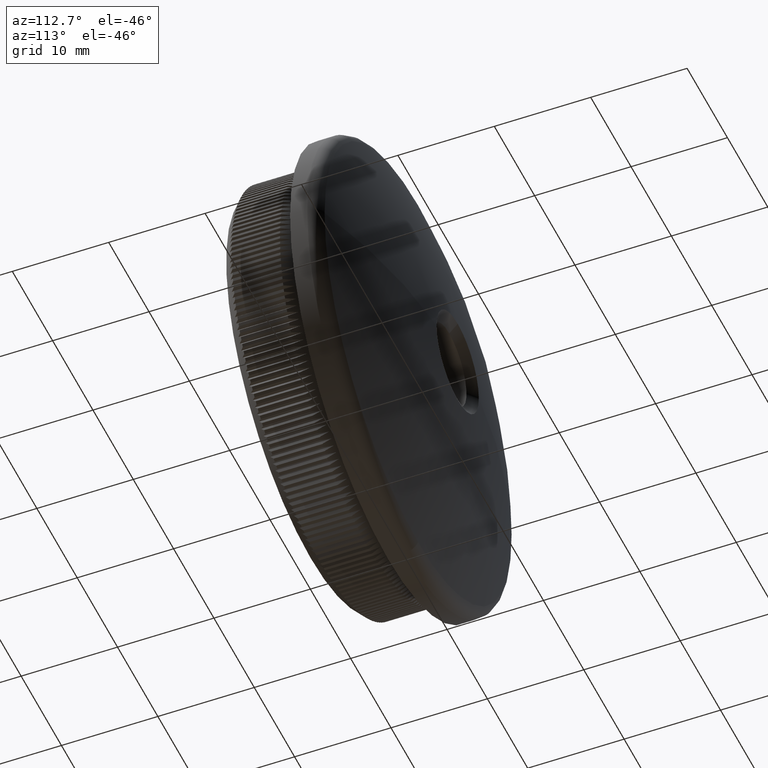
[diagram: clean part render]
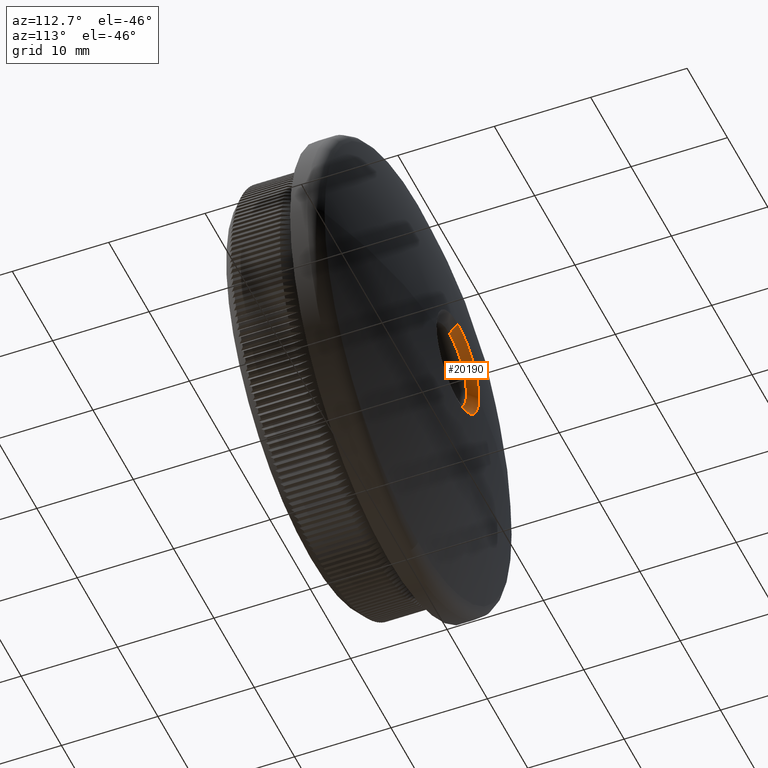
[diagram: same view with one face highlighted and labeled with its STEP entity id]
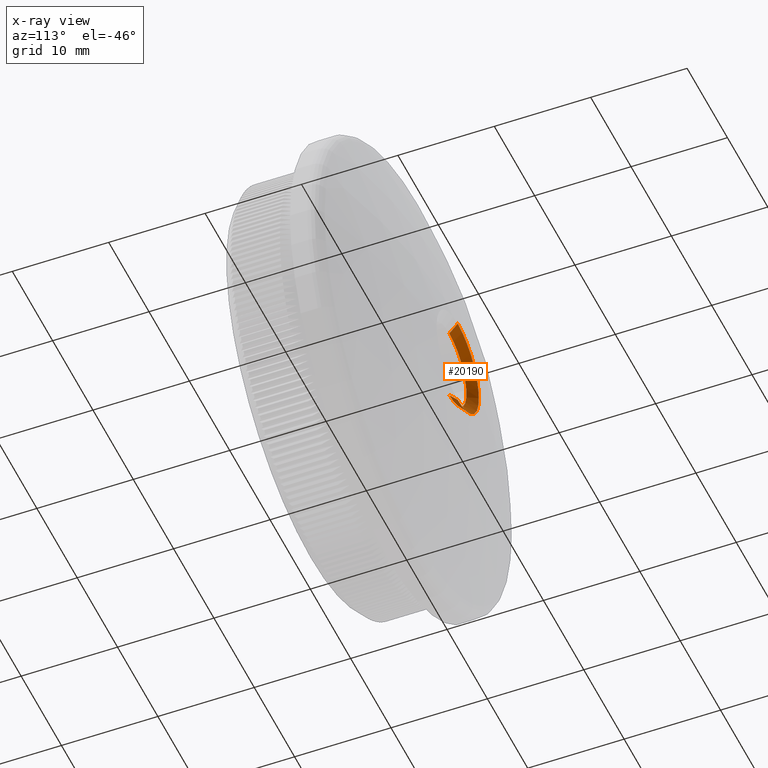
[diagram: x-ray of the same camera — body ghosted, the highlighted face saturated]
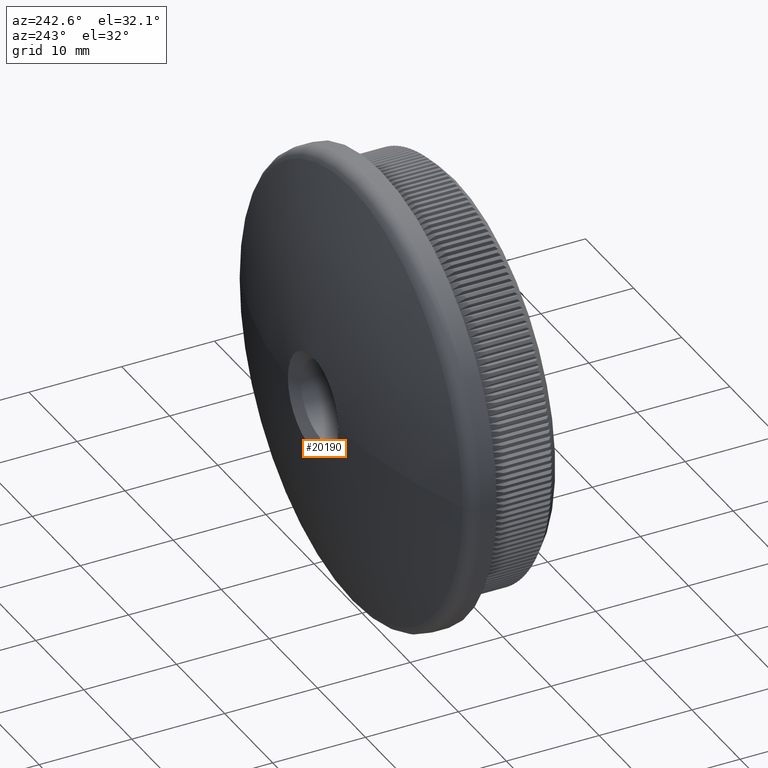
[diagram: same view with one face highlighted and labeled with its STEP entity id]
A machine part, auxiliary view. The second image highlights one B-rep face of the part: STEP entity #20190.
The next image is the same camera in x-ray: the body ghosted, the highlighted face saturated — about 0% of this face is hidden behind the body in this view.
A second angle (auxiliary view) of the same face is appended — the face is thin or edge-on in the first view.
In plain terms, the highlighted conical surface has half-angle 48.784 deg.
Its self-contained STEP definition (entity closure, byte-faithful):
#114 = AXIS2_PLACEMENT_3D ( 'NONE', #9771, #17198, #22277 ) ;
#358 = DIRECTION ( 'NONE',  ( 0.0000000000000000000, 1.000000000000000000, 0.0000000000000000000 ) ) ;
#672 = VERTEX_POINT ( 'NONE', #10247 ) ;
#935 = CARTESIAN_POINT ( 'NONE',  ( 5.204748896376246800E-016, 14.41958930226687500, -4.249999999999995600 ) ) ;
#1370 = ORIENTED_EDGE ( 'NONE', *, *, #22700, .F. ) ;
#1395 = EDGE_CURVE ( 'NONE', #12057, #15328, #30541, .T. ) ;
#2802 = DIRECTION ( 'NONE',  ( 0.0000000000000000000, 0.0000000000000000000, 1.000000000000000000 ) ) ;
#3304 = VECTOR ( 'NONE', #13474, 1000.000000000000200 ) ;
#3840 = CARTESIAN_POINT ( 'NONE',  ( 0.0000000000000000000, 14.41958930226687500, 4.249999999999995600 ) ) ;
#4291 = DIRECTION ( 'NONE',  ( 0.0000000000000000000, 0.0000000000000000000, -1.000000000000000000 ) ) ;
#5987 = CARTESIAN_POINT ( 'NONE',  ( 0.0000000000000000000, 15.28647477270349200, 0.0000000000000000000 ) ) ;
#6069 = VERTEX_POINT ( 'NONE', #22614 ) ;
#7025 = CIRCLE ( 'NONE', #13431, 5.239684941423129200 ) ;
#9194 = CARTESIAN_POINT ( 'NONE',  ( 0.0000000000000000000, 15.28647477270349200, 5.239684941423142600 ) ) ;
#9771 = CARTESIAN_POINT ( 'NONE',  ( 0.0000000000000000000, 15.28647477270349200, 0.0000000000000000000 ) ) ;
#10068 = LINE ( 'NONE', #935, #3304 ) ;
#10247 = CARTESIAN_POINT ( 'NONE',  ( -5.239684941423129200, 15.28647477270349200, 1.740827551892606700E-015 ) ) ;
#10436 = AXIS2_PLACEMENT_3D ( 'NONE', #19833, #20052, #15066 ) ;
#10451 = ORIENTED_EDGE ( 'NONE', *, *, #27454, .F. ) ;
#12057 = VERTEX_POINT ( 'NONE', #30281 ) ;
#13431 = AXIS2_PLACEMENT_3D ( 'NONE', #5987, #23691, #4291 ) ;
#13474 = DIRECTION ( 'NONE',  ( 9.212202102795749600E-017, 0.6588967526473940000, -0.7522333875538355100 ) ) ;
#14191 = EDGE_LOOP ( 'NONE', ( #17451, #15044, #10451, #1370, #15450 ) ) ;
#15044 = ORIENTED_EDGE ( 'NONE', *, *, #15158, .T. ) ;
#15066 = DIRECTION ( 'NONE',  ( 0.0000000000000000000, 0.0000000000000000000, 1.000000000000000000 ) ) ;
#15158 = EDGE_CURVE ( 'NONE', #12057, #6069, #10068, .T. ) ;
#15328 = VERTEX_POINT ( 'NONE', #32149 ) ;
#15450 = ORIENTED_EDGE ( 'NONE', *, *, #21217, .F. ) ;
#16981 = LINE ( 'NONE', #3840, #20982 ) ;
#17198 = DIRECTION ( 'NONE',  ( -0.0000000000000000000, -1.000000000000000000, -0.0000000000000000000 ) ) ;
#17451 = ORIENTED_EDGE ( 'NONE', *, *, #1395, .F. ) ;
#18334 = VERTEX_POINT ( 'NONE', #9194 ) ;
#19833 = CARTESIAN_POINT ( 'NONE',  ( 0.0000000000000000000, 14.41958930226687500, 0.0000000000000000000 ) ) ;
#20052 = DIRECTION ( 'NONE',  ( 0.0000000000000000000, 1.000000000000000000, 0.0000000000000000000 ) ) ;
#20190 = ADVANCED_FACE ( 'NONE', ( #22957 ), #29687, .F. ) ;
#20982 = VECTOR ( 'NONE', #24095, 1000.000000000000200 ) ;
#21217 = EDGE_CURVE ( 'NONE', #15328, #18334, #16981, .T. ) ;
#21556 = CIRCLE ( 'NONE', #114, 5.239684941423129200 ) ;
#22277 = DIRECTION ( 'NONE',  ( 0.0000000000000000000, 0.0000000000000000000, -1.000000000000000000 ) ) ;
#22614 = CARTESIAN_POINT ( 'NONE',  ( 6.416763392054438900E-016, 15.28647477270349200, -5.239684941423142600 ) ) ;
#22700 = EDGE_CURVE ( 'NONE', #18334, #672, #7025, .T. ) ;
#22957 = FACE_OUTER_BOUND ( 'NONE', #14191, .T. ) ;
#23691 = DIRECTION ( 'NONE',  ( -0.0000000000000000000, -1.000000000000000000, -0.0000000000000000000 ) ) ;
#24095 = DIRECTION ( 'NONE',  ( 0.0000000000000000000, 0.6588967526473940000, 0.7522333875538355100 ) ) ;
#25604 = CARTESIAN_POINT ( 'NONE',  ( 0.0000000000000000000, 14.41958930226687500, 0.0000000000000000000 ) ) ;
#27454 = EDGE_CURVE ( 'NONE', #672, #6069, #21556, .T. ) ;
#29687 = CONICAL_SURFACE ( 'NONE', #10436, 4.249999999999995600, 0.8514451387859506300 ) ;
#30281 = CARTESIAN_POINT ( 'NONE',  ( 0.0000000000000000000, 14.41958930226687500, -4.249999999999995600 ) ) ;
#30541 = CIRCLE ( 'NONE', #30894, 4.249999999999995600 ) ;
#30894 = AXIS2_PLACEMENT_3D ( 'NONE', #25604, #358, #2802 ) ;
#32149 = CARTESIAN_POINT ( 'NONE',  ( 5.204748896376246800E-016, 14.41958930226687500, 4.249999999999995600 ) ) ;